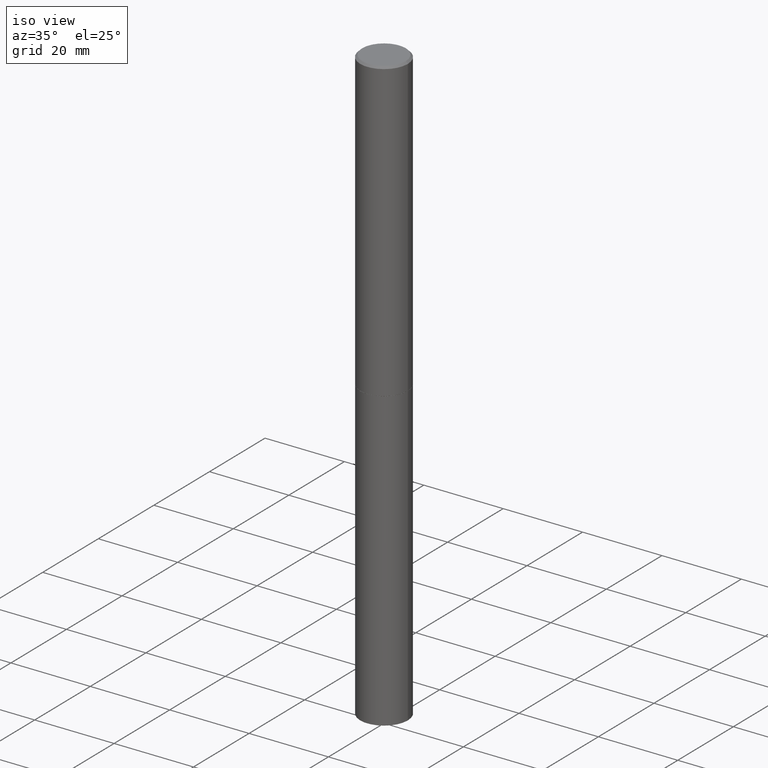
[diagram: clean part render]
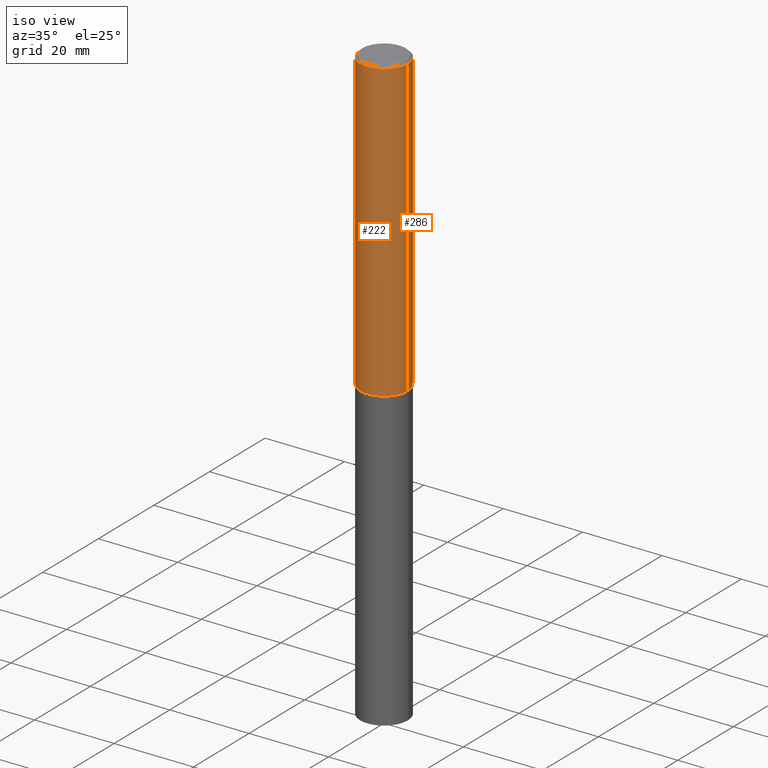
[diagram: same view with one multi-face feature highlighted, each face labeled with its STEP entity id]
A machine part, iso view. The highlighted faces form ONE feature: a constant-radius fillet chain: 2 tangent blend faces with common blend radius 5.9995 mm. The faces share edges in the B-rep.
Their STEP definitions:
[1] entity #222 (Cylinder):
#4 = DIRECTION ( 'NONE',  ( 1.000000000000000000, -6.982962677686266711E-15, 0.000000000000000000 ) ) ;
#33 = CARTESIAN_POINT ( 'NONE',  ( 7.218290275216666916E-29, -1.030580546786331359E-14, -2.951700000000000212 ) ) ;
#46 = CIRCLE ( 'NONE', #153, 0.2361999999999999933 ) ;
#48 = VERTEX_POINT ( 'NONE', #267 ) ;
#67 = VERTEX_POINT ( 'NONE', #130 ) ;
#74 = VERTEX_POINT ( 'NONE', #136 ) ;
#75 = ORIENTED_EDGE ( 'NONE', *, *, #354, .T. ) ;
#85 = DIRECTION ( 'NONE',  ( -2.445468806185136597E-29, 3.491481338843145583E-15, 1.000000000000000000 ) ) ;
#97 = EDGE_CURVE ( 'NONE', #48, #74, #248, .T. ) ;
#109 = CARTESIAN_POINT ( 'NONE',  ( 4.890937612370292426E-31, -6.982962677686317493E-17, -0.02000000000000007674 ) ) ;
#116 = DIRECTION ( 'NONE',  ( -2.445468806185136597E-29, 3.491481338843145583E-15, 1.000000000000000000 ) ) ;
#117 = EDGE_CURVE ( 'NONE', #74, #67, #262, .T. ) ;
#123 = CARTESIAN_POINT ( 'NONE',  ( 0.2361999999999999933, -1.195518125233281011E-14, -2.951700000000000212 ) ) ;
#130 = CARTESIAN_POINT ( 'NONE',  ( 0.2361999999999997712, -1.690279253850497193E-15, -0.02000000000000007674 ) ) ;
#133 = DIRECTION ( 'NONE',  ( -2.445468806185136877E-29, 3.491481338843145188E-15, 1.000000000000000000 ) ) ;
#136 = CARTESIAN_POINT ( 'NONE',  ( -0.2361999999999997712, 1.579546157692631452E-15, -0.02000000000000007674 ) ) ;
#145 = FACE_OUTER_BOUND ( 'NONE', #358, .T. ) ;
#147 = AXIS2_PLACEMENT_3D ( 'NONE', #109, #85, #4 ) ;
#152 = LINE ( 'NONE', #291, #307 ) ;
#153 = AXIS2_PLACEMENT_3D ( 'NONE', #33, #116, #344 ) ;
#163 = EDGE_CURVE ( 'NONE', #48, #300, #46, .T. ) ;
#182 = DIRECTION ( 'NONE',  ( 1.000000000000000000, -6.982962677686266711E-15, 4.876176775795935793E-29 ) ) ;
#191 = CARTESIAN_POINT ( 'NONE',  ( -0.2361999999999998545, 1.678301941865355605E-15, -1.161852468318208056E-29 ) ) ;
#207 = ORIENTED_EDGE ( 'NONE', *, *, #163, .T. ) ;
#222 = ADVANCED_FACE ( 'NONE', ( #145 ), #232, .T. ) ;
#231 = CARTESIAN_POINT ( 'NONE',  ( 0.000000000000000000, 0.000000000000000000, 0.000000000000000000 ) ) ;
#232 = CYLINDRICAL_SURFACE ( 'NONE', #281, 0.2361999999999998545 ) ;
#235 = DIRECTION ( 'NONE',  ( -2.445468806185136597E-29, 3.491481338843145583E-15, 1.000000000000000000 ) ) ;
#248 = LINE ( 'NONE', #191, #306 ) ;
#256 = DIRECTION ( 'NONE',  ( -2.445468806185136877E-29, 3.491481338843145188E-15, 1.000000000000000000 ) ) ;
#262 = CIRCLE ( 'NONE', #147, 0.2361999999999997712 ) ;
#266 = ORIENTED_EDGE ( 'NONE', *, *, #97, .F. ) ;
#267 = CARTESIAN_POINT ( 'NONE',  ( -0.2362000000000000210, -3.509515605454727710E-15, -2.951700000000000212 ) ) ;
#281 = AXIS2_PLACEMENT_3D ( 'NONE', #231, #235, #182 ) ;
#291 = CARTESIAN_POINT ( 'NONE',  ( 0.2361999999999998545, -1.649375784469495145E-15, 1.151752954442999387E-29 ) ) ;
#300 = VERTEX_POINT ( 'NONE', #123 ) ;
#306 = VECTOR ( 'NONE', #133, 39.37007874015748143 ) ;
#307 = VECTOR ( 'NONE', #256, 39.37007874015748143 ) ;
#344 = DIRECTION ( 'NONE',  ( 1.000000000000000000, -6.982962677686265133E-15, 0.000000000000000000 ) ) ;
#354 = EDGE_CURVE ( 'NONE', #300, #67, #152, .T. ) ;
#355 = ORIENTED_EDGE ( 'NONE', *, *, #117, .F. ) ;
#358 = EDGE_LOOP ( 'NONE', ( #266, #207, #75, #355 ) ) ;
[2] entity #286 (Cylinder):
#8 = FACE_OUTER_BOUND ( 'NONE', #331, .T. ) ;
#23 = AXIS2_PLACEMENT_3D ( 'NONE', #201, #35, #229 ) ;
#35 = DIRECTION ( 'NONE',  ( -2.445468806185136597E-29, 3.491481338843145583E-15, 1.000000000000000000 ) ) ;
#48 = VERTEX_POINT ( 'NONE', #267 ) ;
#67 = VERTEX_POINT ( 'NONE', #130 ) ;
#68 = CARTESIAN_POINT ( 'NONE',  ( 0.000000000000000000, 0.000000000000000000, 0.000000000000000000 ) ) ;
#74 = VERTEX_POINT ( 'NONE', #136 ) ;
#97 = EDGE_CURVE ( 'NONE', #48, #74, #248, .T. ) ;
#100 = ORIENTED_EDGE ( 'NONE', *, *, #97, .T. ) ;
#120 = DIRECTION ( 'NONE',  ( -2.445468806185136597E-29, 3.491481338843145583E-15, 1.000000000000000000 ) ) ;
#123 = CARTESIAN_POINT ( 'NONE',  ( 0.2361999999999999933, -1.195518125233281011E-14, -2.951700000000000212 ) ) ;
#129 = AXIS2_PLACEMENT_3D ( 'NONE', #68, #255, #234 ) ;
#130 = CARTESIAN_POINT ( 'NONE',  ( 0.2361999999999997712, -1.690279253850497193E-15, -0.02000000000000007674 ) ) ;
#133 = DIRECTION ( 'NONE',  ( -2.445468806185136877E-29, 3.491481338843145188E-15, 1.000000000000000000 ) ) ;
#136 = CARTESIAN_POINT ( 'NONE',  ( -0.2361999999999997712, 1.579546157692631452E-15, -0.02000000000000007674 ) ) ;
#152 = LINE ( 'NONE', #291, #307 ) ;
#161 = ORIENTED_EDGE ( 'NONE', *, *, #354, .F. ) ;
#175 = CYLINDRICAL_SURFACE ( 'NONE', #129, 0.2361999999999998545 ) ;
#191 = CARTESIAN_POINT ( 'NONE',  ( -0.2361999999999998545, 1.678301941865355605E-15, -1.161852468318208056E-29 ) ) ;
#201 = CARTESIAN_POINT ( 'NONE',  ( 7.218290275216666916E-29, -1.030580546786331359E-14, -2.951700000000000212 ) ) ;
#229 = DIRECTION ( 'NONE',  ( 1.000000000000000000, -6.982962677686265133E-15, 0.000000000000000000 ) ) ;
#234 = DIRECTION ( 'NONE',  ( 1.000000000000000000, -6.982962677686266711E-15, 4.876176775795935793E-29 ) ) ;
#237 = ORIENTED_EDGE ( 'NONE', *, *, #274, .T. ) ;
#248 = LINE ( 'NONE', #191, #306 ) ;
#255 = DIRECTION ( 'NONE',  ( -2.445468806185136597E-29, 3.491481338843145583E-15, 1.000000000000000000 ) ) ;
#256 = DIRECTION ( 'NONE',  ( -2.445468806185136877E-29, 3.491481338843145188E-15, 1.000000000000000000 ) ) ;
#260 = DIRECTION ( 'NONE',  ( 1.000000000000000000, -6.982962677686266711E-15, 0.000000000000000000 ) ) ;
#263 = AXIS2_PLACEMENT_3D ( 'NONE', #292, #120, #260 ) ;
#267 = CARTESIAN_POINT ( 'NONE',  ( -0.2362000000000000210, -3.509515605454727710E-15, -2.951700000000000212 ) ) ;
#274 = EDGE_CURVE ( 'NONE', #300, #48, #346, .T. ) ;
#286 = ADVANCED_FACE ( 'NONE', ( #8 ), #175, .T. ) ;
#291 = CARTESIAN_POINT ( 'NONE',  ( 0.2361999999999998545, -1.649375784469495145E-15, 1.151752954442999387E-29 ) ) ;
#292 = CARTESIAN_POINT ( 'NONE',  ( 4.890937612370292426E-31, -6.982962677686317493E-17, -0.02000000000000007674 ) ) ;
#296 = EDGE_CURVE ( 'NONE', #67, #74, #330, .T. ) ;
#300 = VERTEX_POINT ( 'NONE', #123 ) ;
#301 = ORIENTED_EDGE ( 'NONE', *, *, #296, .F. ) ;
#306 = VECTOR ( 'NONE', #133, 39.37007874015748143 ) ;
#307 = VECTOR ( 'NONE', #256, 39.37007874015748143 ) ;
#330 = CIRCLE ( 'NONE', #263, 0.2361999999999997712 ) ;
#331 = EDGE_LOOP ( 'NONE', ( #237, #100, #301, #161 ) ) ;
#346 = CIRCLE ( 'NONE', #23, 0.2361999999999999933 ) ;
#354 = EDGE_CURVE ( 'NONE', #300, #67, #152, .T. ) ;